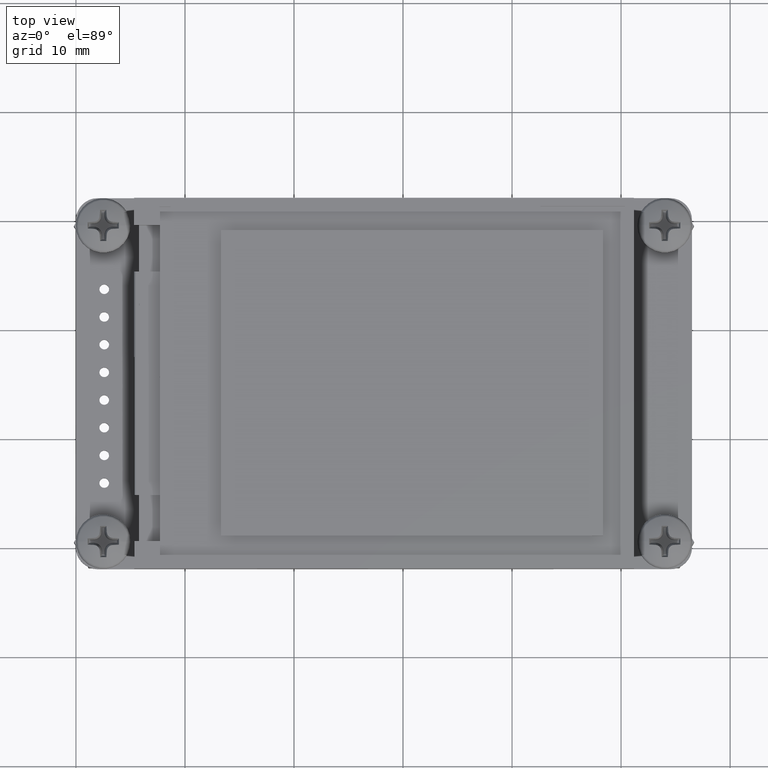
[diagram: clean part render]
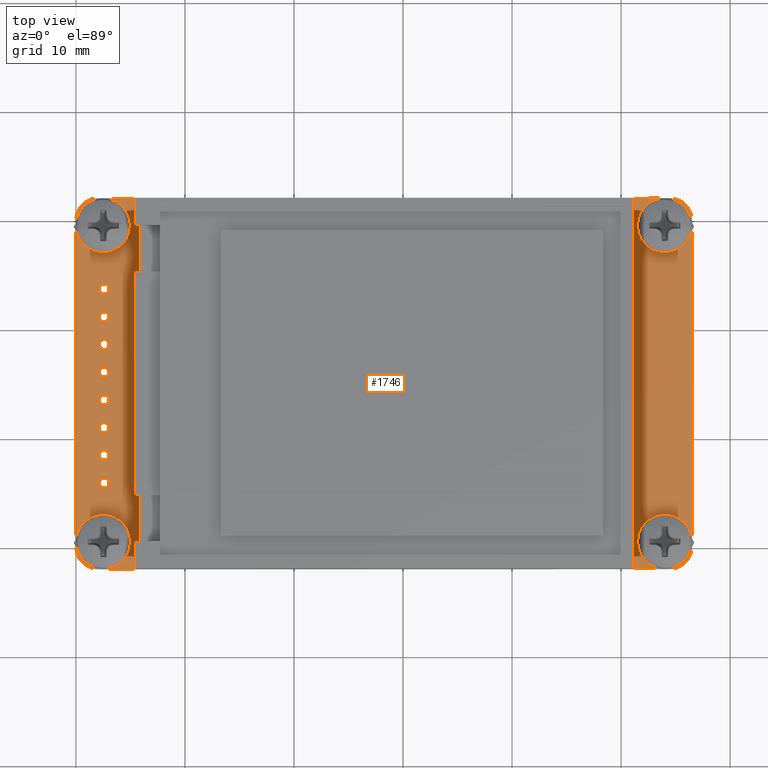
[diagram: same view with one face highlighted and labeled with its STEP entity id]
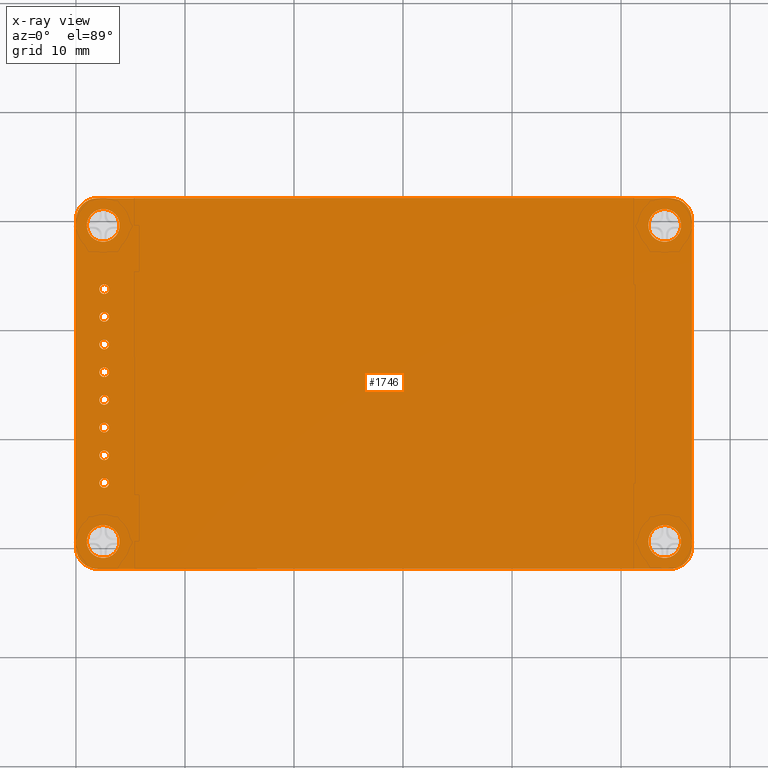
[diagram: x-ray of the same camera — body ghosted, the highlighted face saturated]
A machine part, top view. The second image highlights one B-rep face of the part: STEP entity #1746.
The next image is the same camera in x-ray: the body ghosted, the highlighted face saturated — about 0% of this face is hidden behind the body in this view.
In plain terms, the highlighted planar face has unit normal (0, 0, -1).
Its self-contained STEP definition (entity closure, byte-faithful):
#31=DIRECTION('',(2.902815194421E-1,-9.569412936384E-1,0.E0));
#32=VECTOR('',#31,3.939656930949E-1);
#33=CARTESIAN_POINT('',(2.895091999999E-2,-3.9206932E-1,1.6E0));
#34=LINE('',#33,#32);
#46=DIRECTION('',(7.360870873074E-2,-9.972871993558E-1,0.E0));
#47=VECTOR('',#46,3.931358191033E-1);
#48=CARTESIAN_POINT('',(1.269999999585E-5,4.453197421969E-14,1.6E0));
#49=LINE('',#48,#47);
#476=DIRECTION('',(4.713978486252E-1,-8.819206700784E-1,0.E0));
#477=VECTOR('',#476,3.939658200433E-1);
#478=CARTESIAN_POINT('',(1.433118799996E-1,-7.690713599993E-1,1.6E0));
#479=LINE('',#478,#477);
#490=DIRECTION('',(6.343974256847E-1,-7.730070544857E-1,0.E0));
#491=VECTOR('',#490,3.939658483493E-1);
#492=CARTESIAN_POINT('',(3.290265199999E-1,-1.11651796E0,1.6E0));
#493=LINE('',#492,#491);
#504=DIRECTION('',(7.730070544857E-1,-6.343974256847E-1,0.E0));
#505=VECTOR('',#504,3.939658483476E-1);
#506=CARTESIAN_POINT('',(5.789574400004E-1,-1.42105634E0,1.6E0));
#507=LINE('',#506,#505);
#518=DIRECTION('',(8.819206700784E-1,-4.713978486252E-1,0.E0));
#519=VECTOR('',#518,3.939658200433E-1);
#520=CARTESIAN_POINT('',(8.834958199995E-1,-1.67098726E0,1.6E0));
#521=LINE('',#520,#519);
#532=DIRECTION('',(9.569412936384E-1,-2.902815194421E-1,0.E0));
#533=VECTOR('',#532,3.939656930962E-1);
#534=CARTESIAN_POINT('',(1.23094242E0,-1.8567019E0,1.6E0));
#535=LINE('',#534,#533);
#546=DIRECTION('',(9.951846864474E-1,-9.801754873779E-2,0.E0));
#547=VECTOR('',#546,3.939663917043E-1);
#548=CARTESIAN_POINT('',(1.607944460001E0,-1.97106286E0,1.6E0));
#549=LINE('',#548,#547);
#560=DIRECTION('',(9.999999830110E-1,1.843314730500E-4,0.E0));
#561=VECTOR('',#560,5.249998733192E1);
#562=CARTESIAN_POINT('',(2.00001378E0,-2.00967848E0,1.6E0));
#563=LINE('',#562,#561);
#581=DIRECTION('',(9.972871993558E-1,7.360870873073E-2,0.E0));
#582=VECTOR('',#581,3.931358191033E-1);
#583=CARTESIAN_POINT('',(5.450000022E1,-2.00000108E0,1.6E0));
#584=LINE('',#583,#582);
#595=DIRECTION('',(9.569412936381E-1,2.902815194430E-1,0.E0));
#596=VECTOR('',#595,3.939656930968E-1);
#597=CARTESIAN_POINT('',(5.489206954E1,-1.97106286E0,1.6E0));
#598=LINE('',#597,#596);
#609=DIRECTION('',(8.819206700784E-1,4.713978486252E-1,0.E0));
#610=VECTOR('',#609,3.939658200414E-1);
#611=CARTESIAN_POINT('',(5.526907158E1,-1.856701899999E0,1.6E0));
#612=LINE('',#611,#610);
#623=DIRECTION('',(7.730070544857E-1,6.343974256847E-1,0.E0));
#624=VECTOR('',#623,3.939658483493E-1);
#625=CARTESIAN_POINT('',(5.561651818E1,-1.67098726E0,1.6E0));
#626=LINE('',#625,#624);
#637=DIRECTION('',(6.343974256847E-1,7.730070544857E-1,0.E0));
#638=VECTOR('',#637,3.939658483476E-1);
#639=CARTESIAN_POINT('',(5.592105656E1,-1.42105634E0,1.6E0));
#640=LINE('',#639,#638);
#651=DIRECTION('',(4.713978486252E-1,8.819206700784E-1,0.E0));
#652=VECTOR('',#651,3.939658200433E-1);
#653=CARTESIAN_POINT('',(5.617098748E1,-1.11651796E0,1.6E0));
#654=LINE('',#653,#652);
#665=DIRECTION('',(2.902815194421E-1,9.569412936384E-1,0.E0));
#666=VECTOR('',#665,3.939656930962E-1);
#667=CARTESIAN_POINT('',(5.635670212E1,-7.690713599999E-1,1.6E0));
#668=LINE('',#667,#666);
#679=DIRECTION('',(9.801754873769E-2,9.951846864474E-1,0.E0));
#680=VECTOR('',#679,3.939663917046E-1);
#681=CARTESIAN_POINT('',(5.647106308E1,-3.920693199992E-1,1.6E0));
#682=LINE('',#681,#680);
#693=DIRECTION('',(-3.226646395437E-4,9.999999479438E-1,0.E0));
#694=VECTOR('',#693,3.000000252169E1);
#695=CARTESIAN_POINT('',(5.65096787E1,1.195771823819E-13,1.6E0));
#696=LINE('',#695,#694);
#714=DIRECTION('',(-7.360870873076E-2,9.972871993558E-1,0.E0));
#715=VECTOR('',#714,3.931358191037E-1);
#716=CARTESIAN_POINT('',(5.649999876E1,3.000000096E1,1.6E0));
#717=LINE('',#716,#715);
#728=DIRECTION('',(-2.902815194421E-1,9.569412936384E-1,0.E0));
#729=VECTOR('',#728,3.939656930947E-1);
#730=CARTESIAN_POINT('',(5.647106054E1,3.039207028E1,1.6E0));
#731=LINE('',#730,#729);
#742=DIRECTION('',(-4.713978486252E-1,8.819206700784E-1,0.E0));
#743=VECTOR('',#742,3.939658200434E-1);
#744=CARTESIAN_POINT('',(5.635669958E1,3.076907232E1,1.6E0));
#745=LINE('',#744,#743);
#756=DIRECTION('',(-6.343974256847E-1,7.730070544857E-1,0.E0));
#757=VECTOR('',#756,3.939658483493E-1);
#758=CARTESIAN_POINT('',(5.617098494E1,3.111651892E1,1.6E0));
#759=LINE('',#758,#757);
#770=DIRECTION('',(-7.730070544856E-1,6.343974256847E-1,0.E0));
#771=VECTOR('',#770,3.939658483476E-1);
#772=CARTESIAN_POINT('',(5.592105402E1,3.14210573E1,1.6E0));
#773=LINE('',#772,#771);
#784=DIRECTION('',(-8.819206700784E-1,4.713978486252E-1,0.E0));
#785=VECTOR('',#784,3.939658200433E-1);
#786=CARTESIAN_POINT('',(5.561651564E1,3.167098822E1,1.6E0));
#787=LINE('',#786,#785);
#798=DIRECTION('',(-9.569412936384E-1,2.902815194421E-1,0.E0));
#799=VECTOR('',#798,3.939656930962E-1);
#800=CARTESIAN_POINT('',(5.526906904E1,3.185670286E1,1.6E0));
#801=LINE('',#800,#799);
#812=DIRECTION('',(-9.951846864474E-1,9.801754873782E-2,0.E0));
#813=VECTOR('',#812,3.939663917043E-1);
#814=CARTESIAN_POINT('',(5.4892067E1,3.197106382E1,1.6E0));
#815=LINE('',#814,#813);
#826=DIRECTION('',(-9.999999830110E-1,-1.843314730500E-4,0.E0));
#827=VECTOR('',#826,5.249998733192E1);
#828=CARTESIAN_POINT('',(5.449999768E1,3.200967944E1,1.6E0));
#829=LINE('',#828,#827);
#847=DIRECTION('',(-9.972871993558E-1,-7.360870873074E-2,0.E0));
#848=VECTOR('',#847,3.931358191033E-1);
#849=CARTESIAN_POINT('',(2.00001124E0,3.200000204E1,1.6E0));
#850=LINE('',#849,#848);
#861=DIRECTION('',(-9.569412936384E-1,-2.902815194421E-1,0.E0));
#862=VECTOR('',#861,3.939656930948E-1);
#863=CARTESIAN_POINT('',(1.60794192E0,3.197106382E1,1.6E0));
#864=LINE('',#863,#862);
#875=DIRECTION('',(-8.819206700784E-1,-4.713978486252E-1,0.E0));
#876=VECTOR('',#875,3.939658200433E-1);
#877=CARTESIAN_POINT('',(1.230939880001E0,3.185670286E1,1.6E0));
#878=LINE('',#877,#876);
#889=DIRECTION('',(-7.730070544857E-1,-6.343974256847E-1,0.E0));
#890=VECTOR('',#889,3.939658483493E-1);
#891=CARTESIAN_POINT('',(8.834932800001E-1,3.167098822E1,1.6E0));
#892=LINE('',#891,#890);
#903=DIRECTION('',(-6.343974256847E-1,-7.730070544857E-1,0.E0));
#904=VECTOR('',#903,3.939658483476E-1);
#905=CARTESIAN_POINT('',(5.789548999997E-1,3.14210573E1,1.6E0));
#906=LINE('',#905,#904);
#917=DIRECTION('',(-4.713978486252E-1,-8.819206700784E-1,0.E0));
#918=VECTOR('',#917,3.939658200433E-1);
#919=CARTESIAN_POINT('',(3.290239800002E-1,3.111651892E1,1.6E0));
#920=LINE('',#919,#918);
#931=DIRECTION('',(-2.902815194430E-1,-9.569412936381E-1,0.E0));
#932=VECTOR('',#931,3.939656930944E-1);
#933=CARTESIAN_POINT('',(1.4330934E-1,3.076907232E1,1.6E0));
#934=LINE('',#933,#932);
#945=DIRECTION('',(-9.801754873775E-2,-9.951846864474E-1,0.E0));
#946=VECTOR('',#945,3.939663917062E-1);
#947=CARTESIAN_POINT('',(2.894838000010E-2,3.039207028E1,1.6E0));
#948=LINE('',#947,#946);
#959=DIRECTION('',(3.226646395445E-4,-9.999999479438E-1,0.E0));
#960=VECTOR('',#959,3.000000252169E1);
#961=CARTESIAN_POINT('',(-9.667239999999E-3,3.000000096E1,1.6E0));
#962=LINE('',#961,#960);
#980=CARTESIAN_POINT('',(2.59499862E0,8.41799942E0,1.6E0));
#981=DIRECTION('',(0.E0,0.E0,-1.E0));
#982=DIRECTION('',(-1.E0,0.E0,0.E0));
#983=AXIS2_PLACEMENT_3D('',#980,#981,#982);
#1002=CARTESIAN_POINT('',(2.59499862E0,8.41799942E0,1.6E0));
#1003=DIRECTION('',(0.E0,0.E0,-1.E0));
#1004=DIRECTION('',(1.E0,0.E0,0.E0));
#1005=AXIS2_PLACEMENT_3D('',#1002,#1003,#1004);
#1010=CARTESIAN_POINT('',(2.50001278E0,5.0000154E-1,1.6E0));
#1011=DIRECTION('',(0.E0,0.E0,-1.E0));
#1012=DIRECTION('',(-1.E0,0.E0,0.E0));
#1013=AXIS2_PLACEMENT_3D('',#1010,#1011,#1012);
#1032=CARTESIAN_POINT('',(2.50001278E0,5.0000154E-1,1.6E0));
#1033=DIRECTION('',(0.E0,0.E0,-1.E0));
#1034=DIRECTION('',(1.E0,0.E0,0.E0));
#1035=AXIS2_PLACEMENT_3D('',#1032,#1033,#1034);
#1040=CARTESIAN_POINT('',(2.59499862E0,5.87799942E0,1.6E0));
#1041=DIRECTION('',(0.E0,0.E0,-1.E0));
#1042=DIRECTION('',(-1.E0,0.E0,0.E0));
#1043=AXIS2_PLACEMENT_3D('',#1040,#1041,#1042);
#1062=CARTESIAN_POINT('',(2.59499862E0,5.87799942E0,1.6E0));
#1063=DIRECTION('',(0.E0,0.E0,-1.E0));
#1064=DIRECTION('',(1.E0,0.E0,0.E0));
#1065=AXIS2_PLACEMENT_3D('',#1062,#1063,#1064);
#1070=CARTESIAN_POINT('',(2.59499862E0,1.095799942E1,1.6E0));
#1071=DIRECTION('',(0.E0,0.E0,-1.E0));
#1072=DIRECTION('',(-1.E0,0.E0,0.E0));
#1073=AXIS2_PLACEMENT_3D('',#1070,#1071,#1072);
#1092=CARTESIAN_POINT('',(2.59499862E0,1.095799942E1,1.6E0));
#1093=DIRECTION('',(0.E0,0.E0,-1.E0));
#1094=DIRECTION('',(1.E0,0.E0,0.E0));
#1095=AXIS2_PLACEMENT_3D('',#1092,#1093,#1094);
#1100=CARTESIAN_POINT('',(2.59499862E0,2.365799942E1,1.6E0));
#1101=DIRECTION('',(0.E0,0.E0,-1.E0));
#1102=DIRECTION('',(-1.E0,0.E0,0.E0));
#1103=AXIS2_PLACEMENT_3D('',#1100,#1101,#1102);
#1122=CARTESIAN_POINT('',(2.59499862E0,2.365799942E1,1.6E0));
#1123=DIRECTION('',(0.E0,0.E0,-1.E0));
#1124=DIRECTION('',(1.E0,0.E0,0.E0));
#1125=AXIS2_PLACEMENT_3D('',#1122,#1123,#1124);
#1130=CARTESIAN_POINT('',(2.50001278E0,2.950000196E1,1.6E0));
#1131=DIRECTION('',(0.E0,0.E0,-1.E0));
#1132=DIRECTION('',(-1.E0,0.E0,0.E0));
#1133=AXIS2_PLACEMENT_3D('',#1130,#1131,#1132);
#1152=CARTESIAN_POINT('',(2.50001278E0,2.950000196E1,1.6E0));
#1153=DIRECTION('',(0.E0,0.E0,-1.E0));
#1154=DIRECTION('',(1.E0,0.E0,0.E0));
#1155=AXIS2_PLACEMENT_3D('',#1152,#1153,#1154);
#1160=CARTESIAN_POINT('',(2.59499862E0,1.603799942E1,1.6E0));
#1161=DIRECTION('',(0.E0,0.E0,-1.E0));
#1162=DIRECTION('',(-1.E0,0.E0,0.E0));
#1163=AXIS2_PLACEMENT_3D('',#1160,#1161,#1162);
#1182=CARTESIAN_POINT('',(2.59499862E0,1.603799942E1,1.6E0));
#1183=DIRECTION('',(0.E0,0.E0,-1.E0));
#1184=DIRECTION('',(1.E0,0.E0,0.E0));
#1185=AXIS2_PLACEMENT_3D('',#1182,#1183,#1184);
#1190=CARTESIAN_POINT('',(5.400000122E1,5.0000154E-1,1.6E0));
#1191=DIRECTION('',(0.E0,0.E0,-1.E0));
#1192=DIRECTION('',(-1.E0,0.E0,0.E0));
#1193=AXIS2_PLACEMENT_3D('',#1190,#1191,#1192);
#1212=CARTESIAN_POINT('',(5.400000122E1,5.0000154E-1,1.6E0));
#1213=DIRECTION('',(0.E0,0.E0,-1.E0));
#1214=DIRECTION('',(1.E0,0.E0,0.E0));
#1215=AXIS2_PLACEMENT_3D('',#1212,#1213,#1214);
#1220=CARTESIAN_POINT('',(2.59499862E0,1.349799942E1,1.6E0));
#1221=DIRECTION('',(0.E0,0.E0,-1.E0));
#1222=DIRECTION('',(-1.E0,0.E0,0.E0));
#1223=AXIS2_PLACEMENT_3D('',#1220,#1221,#1222);
#1242=CARTESIAN_POINT('',(2.59499862E0,1.349799942E1,1.6E0));
#1243=DIRECTION('',(0.E0,0.E0,-1.E0));
#1244=DIRECTION('',(1.E0,0.E0,0.E0));
#1245=AXIS2_PLACEMENT_3D('',#1242,#1243,#1244);
#1250=CARTESIAN_POINT('',(2.59499862E0,1.857799942E1,1.6E0));
#1251=DIRECTION('',(0.E0,0.E0,-1.E0));
#1252=DIRECTION('',(-1.E0,0.E0,0.E0));
#1253=AXIS2_PLACEMENT_3D('',#1250,#1251,#1252);
#1272=CARTESIAN_POINT('',(2.59499862E0,1.857799942E1,1.6E0));
#1273=DIRECTION('',(0.E0,0.E0,-1.E0));
#1274=DIRECTION('',(1.E0,0.E0,0.E0));
#1275=AXIS2_PLACEMENT_3D('',#1272,#1273,#1274);
#1280=CARTESIAN_POINT('',(2.59499862E0,2.111799942E1,1.6E0));
#1281=DIRECTION('',(0.E0,0.E0,-1.E0));
#1282=DIRECTION('',(-1.E0,0.E0,0.E0));
#1283=AXIS2_PLACEMENT_3D('',#1280,#1281,#1282);
#1302=CARTESIAN_POINT('',(2.59499862E0,2.111799942E1,1.6E0));
#1303=DIRECTION('',(0.E0,0.E0,-1.E0));
#1304=DIRECTION('',(1.E0,0.E0,0.E0));
#1305=AXIS2_PLACEMENT_3D('',#1302,#1303,#1304);
#1310=CARTESIAN_POINT('',(5.400000122E1,2.950000196E1,1.6E0));
#1311=DIRECTION('',(0.E0,0.E0,-1.E0));
#1312=DIRECTION('',(-1.E0,0.E0,0.E0));
#1313=AXIS2_PLACEMENT_3D('',#1310,#1311,#1312);
#1332=CARTESIAN_POINT('',(5.400000122E1,2.950000196E1,1.6E0));
#1333=DIRECTION('',(0.E0,0.E0,-1.E0));
#1334=DIRECTION('',(1.E0,0.E0,0.E0));
#1335=AXIS2_PLACEMENT_3D('',#1332,#1333,#1334);
#1460=CARTESIAN_POINT('',(2.895091999999E-2,-3.9206932E-1,1.6E0));
#1461=CARTESIAN_POINT('',(1.433118799996E-1,-7.690713599993E-1,1.6E0));
#1462=VERTEX_POINT('',#1460);
#1463=VERTEX_POINT('',#1461);
#1464=CARTESIAN_POINT('',(3.290265199999E-1,-1.11651796E0,1.6E0));
#1465=VERTEX_POINT('',#1464);
#1466=CARTESIAN_POINT('',(5.789574400004E-1,-1.42105634E0,1.6E0));
#1467=VERTEX_POINT('',#1466);
#1468=CARTESIAN_POINT('',(8.834958199995E-1,-1.67098726E0,1.6E0));
#1469=VERTEX_POINT('',#1468);
#1470=CARTESIAN_POINT('',(1.23094242E0,-1.8567019E0,1.6E0));
#1471=VERTEX_POINT('',#1470);
#1472=CARTESIAN_POINT('',(1.607944460001E0,-1.97106286E0,1.6E0));
#1473=VERTEX_POINT('',#1472);
#1474=CARTESIAN_POINT('',(2.00001378E0,-2.00967848E0,1.6E0));
#1475=VERTEX_POINT('',#1474);
#1476=CARTESIAN_POINT('',(5.450000022E1,-2.00000108E0,1.6E0));
#1477=VERTEX_POINT('',#1476);
#1478=CARTESIAN_POINT('',(5.489206954E1,-1.97106286E0,1.6E0));
#1479=VERTEX_POINT('',#1478);
#1480=CARTESIAN_POINT('',(5.526907158E1,-1.856701899999E0,1.6E0));
#1481=VERTEX_POINT('',#1480);
#1482=CARTESIAN_POINT('',(5.561651818E1,-1.67098726E0,1.6E0));
#1483=VERTEX_POINT('',#1482);
#1484=CARTESIAN_POINT('',(5.592105656E1,-1.42105634E0,1.6E0));
#1485=VERTEX_POINT('',#1484);
#1486=CARTESIAN_POINT('',(5.617098748E1,-1.11651796E0,1.6E0));
#1487=VERTEX_POINT('',#1486);
#1488=CARTESIAN_POINT('',(5.635670212E1,-7.690713599999E-1,1.6E0));
#1489=VERTEX_POINT('',#1488);
#1490=CARTESIAN_POINT('',(5.647106308E1,-3.920693199992E-1,1.6E0));
#1491=VERTEX_POINT('',#1490);
#1492=CARTESIAN_POINT('',(5.65096787E1,1.195710197521E-13,1.6E0));
#1493=VERTEX_POINT('',#1492);
#1494=CARTESIAN_POINT('',(5.649999876E1,3.000000096E1,1.6E0));
#1495=VERTEX_POINT('',#1494);
#1496=CARTESIAN_POINT('',(5.647106054E1,3.039207028E1,1.6E0));
#1497=VERTEX_POINT('',#1496);
#1498=CARTESIAN_POINT('',(5.635669958E1,3.076907232E1,1.6E0));
#1499=VERTEX_POINT('',#1498);
#1500=CARTESIAN_POINT('',(5.617098494E1,3.111651892E1,1.6E0));
#1501=VERTEX_POINT('',#1500);
#1502=CARTESIAN_POINT('',(5.592105402E1,3.14210573E1,1.6E0));
#1503=VERTEX_POINT('',#1502);
#1504=CARTESIAN_POINT('',(5.561651564E1,3.167098822E1,1.6E0));
#1505=VERTEX_POINT('',#1504);
#1506=CARTESIAN_POINT('',(5.526906904E1,3.185670286E1,1.6E0));
#1507=VERTEX_POINT('',#1506);
#1508=CARTESIAN_POINT('',(5.4892067E1,3.197106382E1,1.6E0));
#1509=VERTEX_POINT('',#1508);
#1510=CARTESIAN_POINT('',(5.449999768E1,3.200967944E1,1.6E0));
#1511=VERTEX_POINT('',#1510);
#1512=CARTESIAN_POINT('',(2.00001124E0,3.200000204E1,1.6E0));
#1513=VERTEX_POINT('',#1512);
#1514=CARTESIAN_POINT('',(1.60794192E0,3.197106382E1,1.6E0));
#1515=VERTEX_POINT('',#1514);
#1516=CARTESIAN_POINT('',(1.230939880001E0,3.185670286E1,1.6E0));
#1517=VERTEX_POINT('',#1516);
#1518=CARTESIAN_POINT('',(8.834932800001E-1,3.167098822E1,1.6E0));
#1519=VERTEX_POINT('',#1518);
#1520=CARTESIAN_POINT('',(5.789548999997E-1,3.14210573E1,1.6E0));
#1521=VERTEX_POINT('',#1520);
#1522=CARTESIAN_POINT('',(3.290239800002E-1,3.111651892E1,1.6E0));
#1523=VERTEX_POINT('',#1522);
#1524=CARTESIAN_POINT('',(1.4330934E-1,3.076907232E1,1.6E0));
#1525=VERTEX_POINT('',#1524);
#1526=CARTESIAN_POINT('',(2.894838000010E-2,3.039207028E1,1.6E0));
#1527=VERTEX_POINT('',#1526);
#1528=CARTESIAN_POINT('',(-9.667239999999E-3,3.000000096E1,1.6E0));
#1529=VERTEX_POINT('',#1528);
#1530=CARTESIAN_POINT('',(1.269999999585E-5,4.618527782441E-14,1.6E0));
#1531=VERTEX_POINT('',#1530);
#1532=CARTESIAN_POINT('',(3.03949862E0,8.41799942E0,1.6E0));
#1533=CARTESIAN_POINT('',(2.15049862E0,8.41799942E0,1.6E0));
#1534=VERTEX_POINT('',#1532);
#1535=VERTEX_POINT('',#1533);
#1536=CARTESIAN_POINT('',(4.00001232E0,5.0000154E-1,1.6E0));
#1537=CARTESIAN_POINT('',(1.00001324E0,5.0000154E-1,1.6E0));
#1538=VERTEX_POINT('',#1536);
#1539=VERTEX_POINT('',#1537);
#1540=CARTESIAN_POINT('',(3.03949862E0,5.87799942E0,1.6E0));
#1541=CARTESIAN_POINT('',(2.15049862E0,5.87799942E0,1.6E0));
#1542=VERTEX_POINT('',#1540);
#1543=VERTEX_POINT('',#1541);
#1544=CARTESIAN_POINT('',(3.03949862E0,1.095799942E1,1.6E0));
#1545=CARTESIAN_POINT('',(2.15049862E0,1.095799942E1,1.6E0));
#1546=VERTEX_POINT('',#1544);
#1547=VERTEX_POINT('',#1545);
#1548=CARTESIAN_POINT('',(3.03949862E0,2.365799942E1,1.6E0));
#1549=CARTESIAN_POINT('',(2.15049862E0,2.365799942E1,1.6E0));
#1550=VERTEX_POINT('',#1548);
#1551=VERTEX_POINT('',#1549);
#1552=CARTESIAN_POINT('',(4.00001232E0,2.950000196E1,1.6E0));
#1553=CARTESIAN_POINT('',(1.00001324E0,2.950000196E1,1.6E0));
#1554=VERTEX_POINT('',#1552);
#1555=VERTEX_POINT('',#1553);
#1556=CARTESIAN_POINT('',(3.03949862E0,1.603799942E1,1.6E0));
#1557=CARTESIAN_POINT('',(2.15049862E0,1.603799942E1,1.6E0));
#1558=VERTEX_POINT('',#1556);
#1559=VERTEX_POINT('',#1557);
#1560=CARTESIAN_POINT('',(5.550000076E1,5.0000154E-1,1.6E0));
#1561=CARTESIAN_POINT('',(5.250000168E1,5.0000154E-1,1.6E0));
#1562=VERTEX_POINT('',#1560);
#1563=VERTEX_POINT('',#1561);
#1564=CARTESIAN_POINT('',(3.03949862E0,1.349799942E1,1.6E0));
#1565=CARTESIAN_POINT('',(2.15049862E0,1.349799942E1,1.6E0));
#1566=VERTEX_POINT('',#1564);
#1567=VERTEX_POINT('',#1565);
#1568=CARTESIAN_POINT('',(3.03949862E0,1.857799942E1,1.6E0));
#1569=CARTESIAN_POINT('',(2.15049862E0,1.857799942E1,1.6E0));
#1570=VERTEX_POINT('',#1568);
#1571=VERTEX_POINT('',#1569);
#1572=CARTESIAN_POINT('',(3.03949862E0,2.111799942E1,1.6E0));
#1573=CARTESIAN_POINT('',(2.15049862E0,2.111799942E1,1.6E0));
#1574=VERTEX_POINT('',#1572);
#1575=VERTEX_POINT('',#1573);
#1576=CARTESIAN_POINT('',(5.550000076E1,2.950000196E1,1.6E0));
#1577=CARTESIAN_POINT('',(5.250000168E1,2.950000196E1,1.6E0));
#1578=VERTEX_POINT('',#1576);
#1579=VERTEX_POINT('',#1577);
#1596=CARTESIAN_POINT('',(-8.681545696589E0,-4.052164808187E1,1.6E0));
#1597=DIRECTION('',(0.E0,0.E0,-1.E0));
#1598=DIRECTION('',(9.999999830110E-1,1.843314730500E-4,0.E0));
#1599=AXIS2_PLACEMENT_3D('',#1596,#1597,#1598);
#1600=PLANE('',#1599);
#1601=ORIENTED_EDGE('',*,*,#1585,.F.);
#1603=ORIENTED_EDGE('',*,*,#1602,.F.);
#1605=ORIENTED_EDGE('',*,*,#1604,.F.);
#1607=ORIENTED_EDGE('',*,*,#1606,.F.);
#1609=ORIENTED_EDGE('',*,*,#1608,.F.);
#1611=ORIENTED_EDGE('',*,*,#1610,.F.);
#1613=ORIENTED_EDGE('',*,*,#1612,.F.);
#1615=ORIENTED_EDGE('',*,*,#1614,.F.);
#1617=ORIENTED_EDGE('',*,*,#1616,.F.);
#1619=ORIENTED_EDGE('',*,*,#1618,.F.);
#1621=ORIENTED_EDGE('',*,*,#1620,.F.);
#1623=ORIENTED_EDGE('',*,*,#1622,.F.);
#1625=ORIENTED_EDGE('',*,*,#1624,.F.);
#1627=ORIENTED_EDGE('',*,*,#1626,.F.);
#1629=ORIENTED_EDGE('',*,*,#1628,.F.);
#1631=ORIENTED_EDGE('',*,*,#1630,.F.);
#1633=ORIENTED_EDGE('',*,*,#1632,.F.);
#1635=ORIENTED_EDGE('',*,*,#1634,.F.);
#1637=ORIENTED_EDGE('',*,*,#1636,.F.);
#1639=ORIENTED_EDGE('',*,*,#1638,.F.);
#1641=ORIENTED_EDGE('',*,*,#1640,.F.);
#1643=ORIENTED_EDGE('',*,*,#1642,.F.);
#1645=ORIENTED_EDGE('',*,*,#1644,.F.);
#1647=ORIENTED_EDGE('',*,*,#1646,.F.);
#1649=ORIENTED_EDGE('',*,*,#1648,.F.);
#1651=ORIENTED_EDGE('',*,*,#1650,.F.);
#1653=ORIENTED_EDGE('',*,*,#1652,.F.);
#1655=ORIENTED_EDGE('',*,*,#1654,.F.);
#1657=ORIENTED_EDGE('',*,*,#1656,.F.);
#1659=ORIENTED_EDGE('',*,*,#1658,.F.);
#1661=ORIENTED_EDGE('',*,*,#1660,.F.);
#1663=ORIENTED_EDGE('',*,*,#1662,.F.);
#1665=ORIENTED_EDGE('',*,*,#1664,.F.);
#1667=ORIENTED_EDGE('',*,*,#1666,.F.);
#1669=ORIENTED_EDGE('',*,*,#1668,.F.);
#1671=ORIENTED_EDGE('',*,*,#1670,.F.);
#1672=EDGE_LOOP('',(#1601,#1603,#1605,#1607,#1609,#1611,#1613,#1615,#1617,#1619,
#1621,#1623,#1625,#1627,#1629,#1631,#1633,#1635,#1637,#1639,#1641,#1643,#1645,
#1647,#1649,#1651,#1653,#1655,#1657,#1659,#1661,#1663,#1665,#1667,#1669,#1671));
#1673=FACE_OUTER_BOUND('',#1672,.F.);
#1675=ORIENTED_EDGE('',*,*,#1674,.F.);
#1677=ORIENTED_EDGE('',*,*,#1676,.F.);
#1678=EDGE_LOOP('',(#1675,#1677));
#1679=FACE_BOUND('',#1678,.F.);
#1681=ORIENTED_EDGE('',*,*,#1680,.F.);
#1683=ORIENTED_EDGE('',*,*,#1682,.F.);
#1684=EDGE_LOOP('',(#1681,#1683));
#1685=FACE_BOUND('',#1684,.F.);
#1687=ORIENTED_EDGE('',*,*,#1686,.F.);
#1689=ORIENTED_EDGE('',*,*,#1688,.F.);
#1690=EDGE_LOOP('',(#1687,#1689));
#1691=FACE_BOUND('',#1690,.F.);
#1693=ORIENTED_EDGE('',*,*,#1692,.F.);
#1695=ORIENTED_EDGE('',*,*,#1694,.F.);
#1696=EDGE_LOOP('',(#1693,#1695));
#1697=FACE_BOUND('',#1696,.F.);
#1699=ORIENTED_EDGE('',*,*,#1698,.F.);
#1701=ORIENTED_EDGE('',*,*,#1700,.F.);
#1702=EDGE_LOOP('',(#1699,#1701));
#1703=FACE_BOUND('',#1702,.F.);
#1705=ORIENTED_EDGE('',*,*,#1704,.F.);
#1707=ORIENTED_EDGE('',*,*,#1706,.F.);
#1708=EDGE_LOOP('',(#1705,#1707));
#1709=FACE_BOUND('',#1708,.F.);
#1711=ORIENTED_EDGE('',*,*,#1710,.F.);
#1713=ORIENTED_EDGE('',*,*,#1712,.F.);
#1714=EDGE_LOOP('',(#1711,#1713));
#1715=FACE_BOUND('',#1714,.F.);
#1717=ORIENTED_EDGE('',*,*,#1716,.F.);
#1719=ORIENTED_EDGE('',*,*,#1718,.F.);
#1720=EDGE_LOOP('',(#1717,#1719));
#1721=FACE_BOUND('',#1720,.F.);
#1723=ORIENTED_EDGE('',*,*,#1722,.F.);
#1725=ORIENTED_EDGE('',*,*,#1724,.F.);
#1726=EDGE_LOOP('',(#1723,#1725));
#1727=FACE_BOUND('',#1726,.F.);
#1729=ORIENTED_EDGE('',*,*,#1728,.F.);
#1731=ORIENTED_EDGE('',*,*,#1730,.F.);
#1732=EDGE_LOOP('',(#1729,#1731));
#1733=FACE_BOUND('',#1732,.F.);
#1735=ORIENTED_EDGE('',*,*,#1734,.F.);
#1737=ORIENTED_EDGE('',*,*,#1736,.F.);
#1738=EDGE_LOOP('',(#1735,#1737));
#1739=FACE_BOUND('',#1738,.F.);
#1741=ORIENTED_EDGE('',*,*,#1740,.F.);
#1743=ORIENTED_EDGE('',*,*,#1742,.F.);
#1744=EDGE_LOOP('',(#1741,#1743));
#1745=FACE_BOUND('',#1744,.F.);
#1746=ADVANCED_FACE('',(#1673,#1679,#1685,#1691,#1697,#1703,#1709,#1715,#1721,
#1727,#1733,#1739,#1745),#1600,.F.);
#984=CIRCLE('',#983,4.445E-1);
#1006=CIRCLE('',#1005,4.445E-1);
#1014=CIRCLE('',#1013,1.49999954E0);
#1036=CIRCLE('',#1035,1.49999954E0);
#1044=CIRCLE('',#1043,4.445E-1);
#1066=CIRCLE('',#1065,4.445E-1);
#1074=CIRCLE('',#1073,4.445E-1);
#1096=CIRCLE('',#1095,4.445E-1);
#1104=CIRCLE('',#1103,4.445E-1);
#1126=CIRCLE('',#1125,4.445E-1);
#1134=CIRCLE('',#1133,1.49999954E0);
#1156=CIRCLE('',#1155,1.49999954E0);
#1164=CIRCLE('',#1163,4.445E-1);
#1186=CIRCLE('',#1185,4.445E-1);
#1194=CIRCLE('',#1193,1.49999954E0);
#1216=CIRCLE('',#1215,1.49999954E0);
#1224=CIRCLE('',#1223,4.445E-1);
#1246=CIRCLE('',#1245,4.445E-1);
#1254=CIRCLE('',#1253,4.445E-1);
#1276=CIRCLE('',#1275,4.445E-1);
#1284=CIRCLE('',#1283,4.445E-1);
#1306=CIRCLE('',#1305,4.445E-1);
#1314=CIRCLE('',#1313,1.49999954E0);
#1336=CIRCLE('',#1335,1.49999954E0);
#1585=EDGE_CURVE('',#1462,#1463,#34,.T.);
#1602=EDGE_CURVE('',#1531,#1462,#49,.T.);
#1604=EDGE_CURVE('',#1529,#1531,#962,.T.);
#1606=EDGE_CURVE('',#1527,#1529,#948,.T.);
#1608=EDGE_CURVE('',#1525,#1527,#934,.T.);
#1610=EDGE_CURVE('',#1523,#1525,#920,.T.);
#1612=EDGE_CURVE('',#1521,#1523,#906,.T.);
#1614=EDGE_CURVE('',#1519,#1521,#892,.T.);
#1616=EDGE_CURVE('',#1517,#1519,#878,.T.);
#1618=EDGE_CURVE('',#1515,#1517,#864,.T.);
#1620=EDGE_CURVE('',#1513,#1515,#850,.T.);
#1622=EDGE_CURVE('',#1511,#1513,#829,.T.);
#1624=EDGE_CURVE('',#1509,#1511,#815,.T.);
#1626=EDGE_CURVE('',#1507,#1509,#801,.T.);
#1628=EDGE_CURVE('',#1505,#1507,#787,.T.);
#1630=EDGE_CURVE('',#1503,#1505,#773,.T.);
#1632=EDGE_CURVE('',#1501,#1503,#759,.T.);
#1634=EDGE_CURVE('',#1499,#1501,#745,.T.);
#1636=EDGE_CURVE('',#1497,#1499,#731,.T.);
#1638=EDGE_CURVE('',#1495,#1497,#717,.T.);
#1640=EDGE_CURVE('',#1493,#1495,#696,.T.);
#1642=EDGE_CURVE('',#1491,#1493,#682,.T.);
#1644=EDGE_CURVE('',#1489,#1491,#668,.T.);
#1646=EDGE_CURVE('',#1487,#1489,#654,.T.);
#1648=EDGE_CURVE('',#1485,#1487,#640,.T.);
#1650=EDGE_CURVE('',#1483,#1485,#626,.T.);
#1652=EDGE_CURVE('',#1481,#1483,#612,.T.);
#1654=EDGE_CURVE('',#1479,#1481,#598,.T.);
#1656=EDGE_CURVE('',#1477,#1479,#584,.T.);
#1658=EDGE_CURVE('',#1475,#1477,#563,.T.);
#1660=EDGE_CURVE('',#1473,#1475,#549,.T.);
#1662=EDGE_CURVE('',#1471,#1473,#535,.T.);
#1664=EDGE_CURVE('',#1469,#1471,#521,.T.);
#1666=EDGE_CURVE('',#1467,#1469,#507,.T.);
#1668=EDGE_CURVE('',#1465,#1467,#493,.T.);
#1670=EDGE_CURVE('',#1463,#1465,#479,.T.);
#1674=EDGE_CURVE('',#1534,#1535,#1006,.T.);
#1676=EDGE_CURVE('',#1535,#1534,#984,.T.);
#1680=EDGE_CURVE('',#1538,#1539,#1036,.T.);
#1682=EDGE_CURVE('',#1539,#1538,#1014,.T.);
#1686=EDGE_CURVE('',#1542,#1543,#1066,.T.);
#1688=EDGE_CURVE('',#1543,#1542,#1044,.T.);
#1692=EDGE_CURVE('',#1546,#1547,#1096,.T.);
#1694=EDGE_CURVE('',#1547,#1546,#1074,.T.);
#1698=EDGE_CURVE('',#1550,#1551,#1126,.T.);
#1700=EDGE_CURVE('',#1551,#1550,#1104,.T.);
#1704=EDGE_CURVE('',#1554,#1555,#1156,.T.);
#1706=EDGE_CURVE('',#1555,#1554,#1134,.T.);
#1710=EDGE_CURVE('',#1558,#1559,#1186,.T.);
#1712=EDGE_CURVE('',#1559,#1558,#1164,.T.);
#1716=EDGE_CURVE('',#1562,#1563,#1216,.T.);
#1718=EDGE_CURVE('',#1563,#1562,#1194,.T.);
#1722=EDGE_CURVE('',#1566,#1567,#1246,.T.);
#1724=EDGE_CURVE('',#1567,#1566,#1224,.T.);
#1728=EDGE_CURVE('',#1570,#1571,#1276,.T.);
#1730=EDGE_CURVE('',#1571,#1570,#1254,.T.);
#1734=EDGE_CURVE('',#1574,#1575,#1306,.T.);
#1736=EDGE_CURVE('',#1575,#1574,#1284,.T.);
#1740=EDGE_CURVE('',#1578,#1579,#1336,.T.);
#1742=EDGE_CURVE('',#1579,#1578,#1314,.T.);